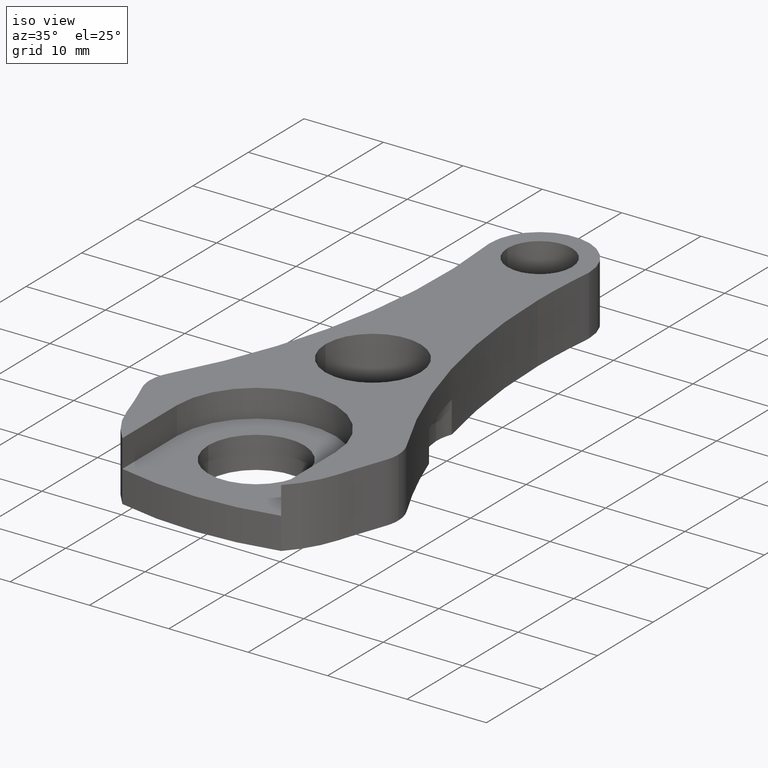
[diagram: clean part render]
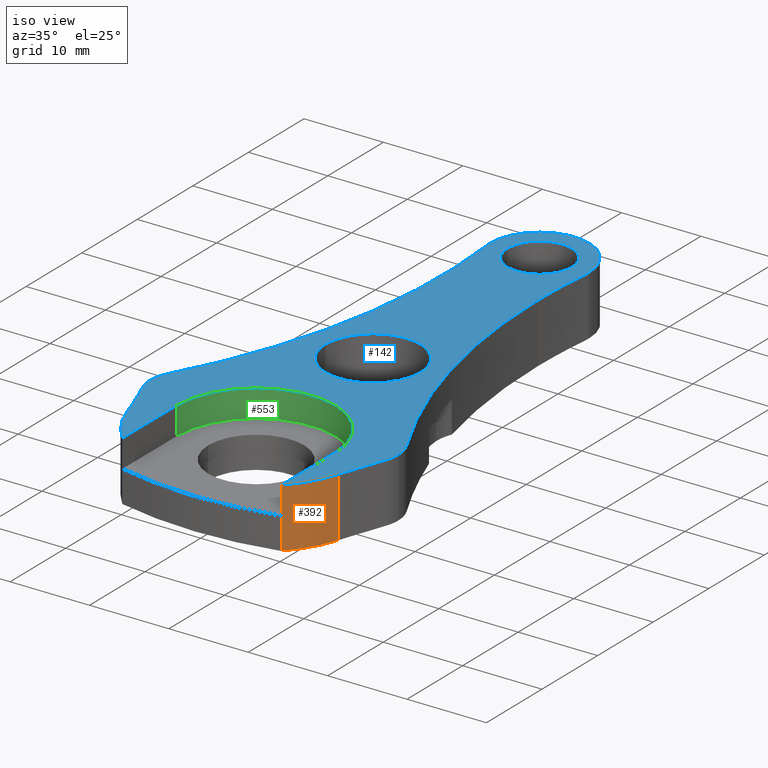
[diagram: same view with three faces highlighted in distinct colors, each labeled with its STEP entity id]
A machine part, iso view with three faces highlighted in distinct colors.
Their STEP definitions:

[orange] entity #392 — the highlighted cylindrical surface (partial cylindrical patch) has radius 14 mm, axis along (-0, 0, -1).
#1 = EDGE_CURVE ( 'NONE', #372, #614, #850, .T. ) ;
#46 = CARTESIAN_POINT ( 'NONE',  ( 0.0000000000000000000, 0.0000000000000000000, 3.500000000000003100 ) ) ;
#51 = VERTEX_POINT ( 'NONE', #244 ) ;
#64 = DIRECTION ( 'NONE',  ( -2.627434620609032000E-046, 1.313717310304516000E-046, -1.000000000000000000 ) ) ;
#77 = LINE ( 'NONE', #116, #304 ) ;
#100 = CARTESIAN_POINT ( 'NONE',  ( 13.34035438566384700, -4.246756982086319400, -4.000000000000003600 ) ) ;
#105 = ORIENTED_EDGE ( 'NONE', *, *, #208, .F. ) ;
#116 = CARTESIAN_POINT ( 'NONE',  ( 9.999999999999968000, -9.797958971132725700, 79.07476084379766200 ) ) ;
#130 = EDGE_CURVE ( 'NONE', #51, #464, #619, .T. ) ;
#145 = CARTESIAN_POINT ( 'NONE',  ( 9.999999999999968000, -9.797958971132725700, 3.500000000000003100 ) ) ;
#208 = EDGE_CURVE ( 'NONE', #352, #464, #618, .T. ) ;
#218 = CARTESIAN_POINT ( 'NONE',  ( 13.34035438566384700, -4.246756982086319400, 3.500000000000003100 ) ) ;
#244 = CARTESIAN_POINT ( 'NONE',  ( 9.999999999999968000, -9.797958971132725700, -4.000000000000003600 ) ) ;
#272 = AXIS2_PLACEMENT_3D ( 'NONE', #870, #951, #388 ) ;
#292 = CIRCLE ( 'NONE', #633, 13.99999999999998800 ) ;
#304 = VECTOR ( 'NONE', #64, 1000.000000000000000 ) ;
#316 = CARTESIAN_POINT ( 'NONE',  ( 13.34035438566384700, -4.246756982086319400, 79.07476084379766200 ) ) ;
#352 = VERTEX_POINT ( 'NONE', #218 ) ;
#355 = ORIENTED_EDGE ( 'NONE', *, *, #130, .T. ) ;
#370 = EDGE_CURVE ( 'NONE', #372, #352, #292, .T. ) ;
#372 = VERTEX_POINT ( 'NONE', #145 ) ;
#388 = DIRECTION ( 'NONE',  ( -1.000000000000000000, 1.885191645205621700E-061, 0.0000000000000000000 ) ) ;
#392 = ADVANCED_FACE ( 'NONE', ( #864 ), #419, .T. ) ;
#395 = CARTESIAN_POINT ( 'NONE',  ( 9.999999999999968000, -9.797958971132725700, 79.07476084379766200 ) ) ;
#419 = CYLINDRICAL_SURFACE ( 'NONE', #272, 13.99999999999998800 ) ;
#437 = ORIENTED_EDGE ( 'NONE', *, *, #370, .F. ) ;
#463 = CARTESIAN_POINT ( 'NONE',  ( 9.999999999999968000, -9.797958971132725700, 0.0000000000000000000 ) ) ;
#464 = VERTEX_POINT ( 'NONE', #100 ) ;
#526 = ORIENTED_EDGE ( 'NONE', *, *, #613, .T. ) ;
#536 = EDGE_LOOP ( 'NONE', ( #437, #668, #526, #355, #105 ) ) ;
#547 = DIRECTION ( 'NONE',  ( 1.000000000000000000, -1.885191645205621700E-061, 0.0000000000000000000 ) ) ;
#603 = DIRECTION ( 'NONE',  ( 1.000000000000000000, -1.885191645205621700E-061, 0.0000000000000000000 ) ) ;
#608 = CARTESIAN_POINT ( 'NONE',  ( 0.0000000000000000000, 0.0000000000000000000, -4.000000000000003600 ) ) ;
#613 = EDGE_CURVE ( 'NONE', #614, #51, #77, .T. ) ;
#614 = VERTEX_POINT ( 'NONE', #463 ) ;
#618 = LINE ( 'NONE', #316, #914 ) ;
#619 = CIRCLE ( 'NONE', #847, 13.99999999999998800 ) ;
#633 = AXIS2_PLACEMENT_3D ( 'NONE', #46, #689, #547 ) ;
#668 = ORIENTED_EDGE ( 'NONE', *, *, #1, .T. ) ;
#689 = DIRECTION ( 'NONE',  ( 2.627434620609032000E-046, -1.313717310304516000E-046, 1.000000000000000000 ) ) ;
#740 = VECTOR ( 'NONE', #958, 1000.000000000000000 ) ;
#747 = DIRECTION ( 'NONE',  ( -2.627434620609032000E-046, 1.313717310304516000E-046, -1.000000000000000000 ) ) ;
#847 = AXIS2_PLACEMENT_3D ( 'NONE', #608, #993, #603 ) ;
#850 = LINE ( 'NONE', #395, #740 ) ;
#864 = FACE_OUTER_BOUND ( 'NONE', #536, .T. ) ;
#870 = CARTESIAN_POINT ( 'NONE',  ( 0.0000000000000000000, 0.0000000000000000000, 79.07476084379766200 ) ) ;
#914 = VECTOR ( 'NONE', #747, 1000.000000000000000 ) ;
#951 = DIRECTION ( 'NONE',  ( -2.627434620609032000E-046, 1.313717310304516000E-046, -1.000000000000000000 ) ) ;
#958 = DIRECTION ( 'NONE',  ( -2.627434620609032000E-046, 1.313717310304516000E-046, -1.000000000000000000 ) ) ;
#993 = DIRECTION ( 'NONE',  ( 2.627434620609032000E-046, -1.313717310304516000E-046, 1.000000000000000000 ) ) ;

[blue] entity #142 — the highlighted planar face has unit normal (-0, -0, 1).
#9 = DIRECTION ( 'NONE',  ( 1.000000000000000000, -1.885191645205621400E-061, 0.0000000000000000000 ) ) ;
#14 = DIRECTION ( 'NONE',  ( -2.627434620609032000E-046, -1.313717310304516000E-046, 1.000000000000000000 ) ) ;
#30 = VERTEX_POINT ( 'NONE', #237 ) ;
#33 = EDGE_CURVE ( 'NONE', #405, #263, #540, .T. ) ;
#40 = DIRECTION ( 'NONE',  ( 1.000000000000000000, 0.0000000000000000000, 0.0000000000000000000 ) ) ;
#42 = AXIS2_PLACEMENT_3D ( 'NONE', #425, #994, #280 ) ;
#46 = CARTESIAN_POINT ( 'NONE',  ( 0.0000000000000000000, 0.0000000000000000000, 3.500000000000003100 ) ) ;
#47 = ORIENTED_EDGE ( 'NONE', *, *, #1050, .F. ) ;
#57 = CARTESIAN_POINT ( 'NONE',  ( -10.79965953901920800, 3.394109441719334300, 3.500000000000003100 ) ) ;
#58 = EDGE_CURVE ( 'NONE', #352, #405, #62, .T. ) ;
#61 = ORIENTED_EDGE ( 'NONE', *, *, #991, .F. ) ;
#62 = CIRCLE ( 'NONE', #234, 76.24851428571427900 ) ;
#65 = ORIENTED_EDGE ( 'NONE', *, *, #644, .T. ) ;
#67 = EDGE_LOOP ( 'NONE', ( #1029, #787, #635, #162, #461, #1071, #88, #189, #890, #952, #375, #65, #835, #336, #992, #309, #508, #570 ) ) ;
#88 = ORIENTED_EDGE ( 'NONE', *, *, #360, .T. ) ;
#90 = EDGE_CURVE ( 'NONE', #470, #256, #873, .T. ) ;
#95 = CARTESIAN_POINT ( 'NONE',  ( 83.78042673124230100, 42.40091762083374500, 3.500000000000003100 ) ) ;
#96 = VERTEX_POINT ( 'NONE', #487 ) ;
#102 = AXIS2_PLACEMENT_3D ( 'NONE', #911, #666, #9 ) ;
#103 = DIRECTION ( 'NONE',  ( 1.000000000000000000, -1.885191645205621400E-061, 2.627434620609032000E-046 ) ) ;
#106 = PLANE ( 'NONE',  #634 ) ;
#115 = CARTESIAN_POINT ( 'NONE',  ( -10.79965953901920800, 3.394109441719334300, 3.500000000000003100 ) ) ;
#117 = AXIS2_PLACEMENT_3D ( 'NONE', #57, #228, #702 ) ;
#131 = CARTESIAN_POINT ( 'NONE',  ( 10.63904025362763600, 3.228825712556809600, 3.500000000000003100 ) ) ;
#137 = VERTEX_POINT ( 'NONE', #816 ) ;
#142 = ADVANCED_FACE ( 'NONE', ( #1064, #695, #972 ), #106, .T. ) ;
#145 = CARTESIAN_POINT ( 'NONE',  ( 9.999999999999968000, -9.797958971132725700, 3.500000000000003100 ) ) ;
#148 = EDGE_CURVE ( 'NONE', #263, #378, #206, .T. ) ;
#154 = CARTESIAN_POINT ( 'NONE',  ( -13.34035438566384700, -4.246756982086305100, 3.500000000000003100 ) ) ;
#162 = ORIENTED_EDGE ( 'NONE', *, *, #523, .T. ) ;
#168 = DIRECTION ( 'NONE',  ( 2.627434620609032000E-046, -1.313717310304516000E-046, 1.000000000000000000 ) ) ;
#184 = DIRECTION ( 'NONE',  ( -2.627434620609032000E-046, 1.313717310304516000E-046, -1.000000000000000000 ) ) ;
#189 = ORIENTED_EDGE ( 'NONE', *, *, #215, .T. ) ;
#190 = DIRECTION ( 'NONE',  ( 1.000000000000000000, 0.0000000000000000000, 0.0000000000000000000 ) ) ;
#194 = CARTESIAN_POINT ( 'NONE',  ( 6.250000000000001800, 50.99999999999997900, 3.500000000000003100 ) ) ;
#206 = CIRCLE ( 'NONE', #678, 5.000000000000000900 ) ;
#210 = CIRCLE ( 'NONE', #42, 4.049999999999998900 ) ;
#215 = EDGE_CURVE ( 'NONE', #1042, #137, #966, .T. ) ;
#218 = CARTESIAN_POINT ( 'NONE',  ( 13.34035438566384700, -4.246756982086319400, 3.500000000000003100 ) ) ;
#228 = DIRECTION ( 'NONE',  ( 2.627434620609032000E-046, -1.313717310304516000E-046, 1.000000000000000000 ) ) ;
#234 = AXIS2_PLACEMENT_3D ( 'NONE', #724, #326, #810 ) ;
#237 = CARTESIAN_POINT ( 'NONE',  ( -9.999999999999994700, 0.0000000000000000000, 3.500000000000003100 ) ) ;
#248 = DIRECTION ( 'NONE',  ( 1.000000000000000000, 4.086064354224496900E-014, 0.0000000000000000000 ) ) ;
#256 = VERTEX_POINT ( 'NONE', #655 ) ;
#257 = DIRECTION ( 'NONE',  ( 2.627434620609032000E-046, -1.313717310304516000E-046, 1.000000000000000000 ) ) ;
#260 = CARTESIAN_POINT ( 'NONE',  ( 9.999999999999968000, -9.797958971132725700, 3.500000000000003100 ) ) ;
#261 = DIRECTION ( 'NONE',  ( 1.000000000000000000, 0.0000000000000000000, 0.0000000000000000000 ) ) ;
#263 = VERTEX_POINT ( 'NONE', #369 ) ;
#280 = DIRECTION ( 'NONE',  ( 1.000000000000000000, 0.0000000000000000000, 0.0000000000000000000 ) ) ;
#292 = CIRCLE ( 'NONE', #633, 13.99999999999998800 ) ;
#297 = CARTESIAN_POINT ( 'NONE',  ( 4.049999999999998900, 50.99999999999997900, 3.500000000000003100 ) ) ;
#300 = DIRECTION ( 'NONE',  ( -2.627434620609032000E-046, 1.313717310304516000E-046, -1.000000000000000000 ) ) ;
#303 = DIRECTION ( 'NONE',  ( -2.627434620609032000E-046, 1.313717310304516000E-046, -1.000000000000000000 ) ) ;
#309 = ORIENTED_EDGE ( 'NONE', *, *, #532, .F. ) ;
#326 = DIRECTION ( 'NONE',  ( -2.627434620609032000E-046, 1.313717310304516000E-046, -1.000000000000000000 ) ) ;
#332 = VERTEX_POINT ( 'NONE', #694 ) ;
#336 = ORIENTED_EDGE ( 'NONE', *, *, #664, .F. ) ;
#345 = CARTESIAN_POINT ( 'NONE',  ( 0.0000000000000000000, 50.99999999999997900, 3.500000000000003100 ) ) ;
#348 = CIRCLE ( 'NONE', #552, 6.000000000000000900 ) ;
#350 = CIRCLE ( 'NONE', #492, 14.00000000000000200 ) ;
#352 = VERTEX_POINT ( 'NONE', #218 ) ;
#354 = CARTESIAN_POINT ( 'NONE',  ( -85.99622595364832000, -27.37596486898382900, 3.500000000000003100 ) ) ;
#360 = EDGE_CURVE ( 'NONE', #669, #1042, #975, .T. ) ;
#369 = CARTESIAN_POINT ( 'NONE',  ( 15.36923433256859400, 1.608559075378921000, 3.500000000000003100 ) ) ;
#370 = EDGE_CURVE ( 'NONE', #372, #352, #292, .T. ) ;
#372 = VERTEX_POINT ( 'NONE', #145 ) ;
#375 = ORIENTED_EDGE ( 'NONE', *, *, #449, .T. ) ;
#378 = VERTEX_POINT ( 'NONE', #852 ) ;
#379 = EDGE_CURVE ( 'NONE', #137, #470, #609, .T. ) ;
#382 = DIRECTION ( 'NONE',  ( 1.000000000000000000, 0.0000000000000000000, 0.0000000000000000000 ) ) ;
#385 = CARTESIAN_POINT ( 'NONE',  ( -9.999999999999994700, 0.0000000000000000000, 3.500000000000003100 ) ) ;
#391 = CIRCLE ( 'NONE', #1056, 77.97056827778322900 ) ;
#402 = DIRECTION ( 'NONE',  ( 2.627434620609032000E-046, -1.313717310304516000E-046, 1.000000000000000000 ) ) ;
#404 = DIRECTION ( 'NONE',  ( 1.000000000000000000, -1.885191645205621700E-061, 0.0000000000000000000 ) ) ;
#405 = VERTEX_POINT ( 'NONE', #550 ) ;
#424 = EDGE_LOOP ( 'NONE', ( #47, #61 ) ) ;
#425 = CARTESIAN_POINT ( 'NONE',  ( 0.0000000000000000000, 50.99999999999997900, 3.500000000000003100 ) ) ;
#428 = CARTESIAN_POINT ( 'NONE',  ( -15.42722516749316100, 1.500531781794455000, 3.500000000000003100 ) ) ;
#431 = AXIS2_PLACEMENT_3D ( 'NONE', #977, #569, #893 ) ;
#439 = DIRECTION ( 'NONE',  ( 1.000000000000000000, 0.0000000000000000000, 0.0000000000000000000 ) ) ;
#445 = VERTEX_POINT ( 'NONE', #672 ) ;
#448 = AXIS2_PLACEMENT_3D ( 'NONE', #642, #168, #626 ) ;
#449 = EDGE_CURVE ( 'NONE', #256, #585, #874, .T. ) ;
#453 = DIRECTION ( 'NONE',  ( 1.000000000000000000, 0.0000000000000000000, 0.0000000000000000000 ) ) ;
#457 = DIRECTION ( 'NONE',  ( 2.627434620609032000E-046, -1.313717310304516000E-046, 1.000000000000000000 ) ) ;
#459 = CIRCLE ( 'NONE', #500, 77.97056827778322900 ) ;
#461 = ORIENTED_EDGE ( 'NONE', *, *, #912, .T. ) ;
#462 = CIRCLE ( 'NONE', #792, 4.049999999999998900 ) ;
#470 = VERTEX_POINT ( 'NONE', #1010 ) ;
#484 = VERTEX_POINT ( 'NONE', #154 ) ;
#487 = CARTESIAN_POINT ( 'NONE',  ( 6.000000000000000900, 20.99999999999997900, 3.500000000000003100 ) ) ;
#488 = CARTESIAN_POINT ( 'NONE',  ( 0.0000000000000000000, 0.0000000000000000000, 3.500000000000003100 ) ) ;
#492 = AXIS2_PLACEMENT_3D ( 'NONE', #488, #1054, #404 ) ;
#500 = AXIS2_PLACEMENT_3D ( 'NONE', #95, #303, #261 ) ;
#506 = VERTEX_POINT ( 'NONE', #858 ) ;
#508 = ORIENTED_EDGE ( 'NONE', *, *, #370, .T. ) ;
#509 = LINE ( 'NONE', #260, #882 ) ;
#523 = EDGE_CURVE ( 'NONE', #941, #589, #391, .T. ) ;
#525 = VERTEX_POINT ( 'NONE', #885 ) ;
#530 = CIRCLE ( 'NONE', #102, 10.00000000000000000 ) ;
#531 = AXIS2_PLACEMENT_3D ( 'NONE', #115, #932, #190 ) ;
#532 = EDGE_CURVE ( 'NONE', #372, #683, #509, .T. ) ;
#540 = CIRCLE ( 'NONE', #577, 179.9999999999999700 ) ;
#547 = DIRECTION ( 'NONE',  ( 1.000000000000000000, -1.885191645205621700E-061, 0.0000000000000000000 ) ) ;
#550 = CARTESIAN_POINT ( 'NONE',  ( 14.31060865489089400, -1.395044883831790600, 3.500000000000003100 ) ) ;
#552 = AXIS2_PLACEMENT_3D ( 'NONE', #891, #1036, #807 ) ;
#558 = EDGE_CURVE ( 'NONE', #800, #506, #210, .T. ) ;
#565 = DIRECTION ( 'NONE',  ( 2.627434620609032000E-046, -1.313717310304516000E-046, 1.000000000000000000 ) ) ;
#566 = CARTESIAN_POINT ( 'NONE',  ( -6.250000000000001800, 50.99999999999997900, 3.500000000000003100 ) ) ;
#569 = DIRECTION ( 'NONE',  ( 2.627434620609032000E-046, -1.313717310304516000E-046, 1.000000000000000000 ) ) ;
#570 = ORIENTED_EDGE ( 'NONE', *, *, #58, .T. ) ;
#577 = AXIS2_PLACEMENT_3D ( 'NONE', #970, #565, #1048 ) ;
#581 = DIRECTION ( 'NONE',  ( 1.000000000000000000, 0.0000000000000000000, 0.0000000000000000000 ) ) ;
#585 = VERTEX_POINT ( 'NONE', #428 ) ;
#589 = VERTEX_POINT ( 'NONE', #857 ) ;
#609 = CIRCLE ( 'NONE', #1062, 74.99999999999998600 ) ;
#612 = CIRCLE ( 'NONE', #859, 6.000000000000000900 ) ;
#626 = DIRECTION ( 'NONE',  ( 1.000000000000000000, 0.0000000000000000000, 0.0000000000000000000 ) ) ;
#633 = AXIS2_PLACEMENT_3D ( 'NONE', #46, #689, #547 ) ;
#634 = AXIS2_PLACEMENT_3D ( 'NONE', #675, #14, #103 ) ;
#635 = ORIENTED_EDGE ( 'NONE', *, *, #763, .T. ) ;
#642 = CARTESIAN_POINT ( 'NONE',  ( 0.0000000000000000000, 50.99999999999997900, 3.500000000000003100 ) ) ;
#644 = EDGE_CURVE ( 'NONE', #585, #484, #773, .T. ) ;
#655 = CARTESIAN_POINT ( 'NONE',  ( -15.79965953901920800, 3.394109441719334300, 3.500000000000003100 ) ) ;
#664 = EDGE_CURVE ( 'NONE', #30, #525, #853, .T. ) ;
#666 = DIRECTION ( 'NONE',  ( 2.627434620609032000E-046, -1.313717310304516000E-046, 1.000000000000000000 ) ) ;
#669 = VERTEX_POINT ( 'NONE', #194 ) ;
#672 = CARTESIAN_POINT ( 'NONE',  ( -6.000000000000000900, 20.99999999999997900, 3.500000000000003100 ) ) ;
#675 = CARTESIAN_POINT ( 'NONE',  ( 0.0000000000000000000, 0.0000000000000000000, 3.500000000000003100 ) ) ;
#677 = AXIS2_PLACEMENT_3D ( 'NONE', #354, #184, #248 ) ;
#678 = AXIS2_PLACEMENT_3D ( 'NONE', #131, #947, #40 ) ;
#683 = VERTEX_POINT ( 'NONE', #1006 ) ;
#689 = DIRECTION ( 'NONE',  ( 2.627434620609032000E-046, -1.313717310304516000E-046, 1.000000000000000000 ) ) ;
#694 = CARTESIAN_POINT ( 'NONE',  ( 6.217337139583195300, 50.36186295142859800, 3.500000000000003100 ) ) ;
#695 = FACE_OUTER_BOUND ( 'NONE', #67, .T. ) ;
#702 = DIRECTION ( 'NONE',  ( 1.000000000000000000, 0.0000000000000000000, 0.0000000000000000000 ) ) ;
#724 = CARTESIAN_POINT ( 'NONE',  ( 85.99622595364830600, -27.37596486898382900, 3.500000000000003100 ) ) ;
#733 = VECTOR ( 'NONE', #871, 1000.000000000000000 ) ;
#743 = CARTESIAN_POINT ( 'NONE',  ( 83.78042673124230100, 42.40091762083374500, 3.500000000000003100 ) ) ;
#763 = EDGE_CURVE ( 'NONE', #378, #941, #926, .T. ) ;
#773 = CIRCLE ( 'NONE', #677, 76.24851428571430700 ) ;
#785 = CARTESIAN_POINT ( 'NONE',  ( -80.76965408793313400, 42.17812499999996600, 3.500000000000003100 ) ) ;
#787 = ORIENTED_EDGE ( 'NONE', *, *, #148, .T. ) ;
#792 = AXIS2_PLACEMENT_3D ( 'NONE', #968, #402, #581 ) ;
#800 = VERTEX_POINT ( 'NONE', #297 ) ;
#806 = EDGE_CURVE ( 'NONE', #506, #800, #462, .T. ) ;
#807 = DIRECTION ( 'NONE',  ( 1.000000000000000000, 0.0000000000000000000, 0.0000000000000000000 ) ) ;
#810 = DIRECTION ( 'NONE',  ( 1.000000000000000000, 0.0000000000000000000, 0.0000000000000000000 ) ) ;
#812 = AXIS2_PLACEMENT_3D ( 'NONE', #345, #920, #439 ) ;
#816 = CARTESIAN_POINT ( 'NONE',  ( -6.213050314456403100, 50.32139423076921500, 3.500000000000003100 ) ) ;
#822 = DIRECTION ( 'NONE',  ( 1.000000000000000000, 0.0000000000000000000, 0.0000000000000000000 ) ) ;
#826 = EDGE_LOOP ( 'NONE', ( #985, #1055 ) ) ;
#830 = DIRECTION ( 'NONE',  ( 3.363939994101538300E-015, 1.000000000000000000, -1.313717310304516000E-046 ) ) ;
#835 = ORIENTED_EDGE ( 'NONE', *, *, #1020, .T. ) ;
#852 = CARTESIAN_POINT ( 'NONE',  ( 15.63904025362763600, 3.228825712556809600, 3.500000000000003100 ) ) ;
#853 = LINE ( 'NONE', #385, #733 ) ;
#856 = DIRECTION ( 'NONE',  ( -2.627434620609032000E-046, 1.313717310304516000E-046, -1.000000000000000000 ) ) ;
#857 = CARTESIAN_POINT ( 'NONE',  ( 5.809858453459076700, 42.40091762083374500, 3.500000000000003100 ) ) ;
#858 = CARTESIAN_POINT ( 'NONE',  ( -4.049999999999998900, 50.99999999999997900, 3.500000000000003100 ) ) ;
#859 = AXIS2_PLACEMENT_3D ( 'NONE', #986, #257, #822 ) ;
#871 = DIRECTION ( 'NONE',  ( -1.770494733737654000E-015, -1.000000000000000000, 1.313717310304516000E-046 ) ) ;
#873 = CIRCLE ( 'NONE', #117, 5.000000000000000000 ) ;
#874 = CIRCLE ( 'NONE', #531, 5.000000000000000000 ) ;
#882 = VECTOR ( 'NONE', #830, 1000.000000000000000 ) ;
#885 = CARTESIAN_POINT ( 'NONE',  ( -10.00000000000002300, -9.797958971132711500, 3.500000000000003100 ) ) ;
#890 = ORIENTED_EDGE ( 'NONE', *, *, #379, .T. ) ;
#891 = CARTESIAN_POINT ( 'NONE',  ( 0.0000000000000000000, 20.99999999999997900, 3.500000000000003100 ) ) ;
#893 = DIRECTION ( 'NONE',  ( 1.000000000000000000, 0.0000000000000000000, 0.0000000000000000000 ) ) ;
#896 = CIRCLE ( 'NONE', #448, 6.250000000000001800 ) ;
#906 = CARTESIAN_POINT ( 'NONE',  ( 15.04671082861630500, 5.589427352473864000, 3.500000000000003100 ) ) ;
#911 = CARTESIAN_POINT ( 'NONE',  ( 0.0000000000000000000, 0.0000000000000000000, 3.500000000000003100 ) ) ;
#912 = EDGE_CURVE ( 'NONE', #589, #332, #459, .T. ) ;
#920 = DIRECTION ( 'NONE',  ( 2.627434620609032000E-046, -1.313717310304516000E-046, 1.000000000000000000 ) ) ;
#926 = CIRCLE ( 'NONE', #944, 5.000000000000000900 ) ;
#932 = DIRECTION ( 'NONE',  ( 2.627434620609032000E-046, -1.313717310304516000E-046, 1.000000000000000000 ) ) ;
#938 = EDGE_CURVE ( 'NONE', #683, #30, #530, .T. ) ;
#941 = VERTEX_POINT ( 'NONE', #906 ) ;
#944 = AXIS2_PLACEMENT_3D ( 'NONE', #1019, #457, #945 ) ;
#945 = DIRECTION ( 'NONE',  ( 1.000000000000000000, 0.0000000000000000000, 0.0000000000000000000 ) ) ;
#947 = DIRECTION ( 'NONE',  ( 2.627434620609032000E-046, -1.313717310304516000E-046, 1.000000000000000000 ) ) ;
#952 = ORIENTED_EDGE ( 'NONE', *, *, #90, .T. ) ;
#963 = EDGE_CURVE ( 'NONE', #332, #669, #896, .T. ) ;
#966 = CIRCLE ( 'NONE', #431, 6.250000000000001800 ) ;
#968 = CARTESIAN_POINT ( 'NONE',  ( 0.0000000000000000000, 50.99999999999997900, 3.500000000000003100 ) ) ;
#970 = CARTESIAN_POINT ( 'NONE',  ( -154.9177525093064400, 59.93815801378288200, 3.500000000000003100 ) ) ;
#972 = FACE_BOUND ( 'NONE', #826, .T. ) ;
#975 = CIRCLE ( 'NONE', #812, 6.250000000000001800 ) ;
#977 = CARTESIAN_POINT ( 'NONE',  ( 0.0000000000000000000, 50.99999999999997900, 3.500000000000003100 ) ) ;
#985 = ORIENTED_EDGE ( 'NONE', *, *, #806, .F. ) ;
#986 = CARTESIAN_POINT ( 'NONE',  ( 0.0000000000000000000, 20.99999999999997900, 3.500000000000003100 ) ) ;
#991 = EDGE_CURVE ( 'NONE', #445, #96, #348, .T. ) ;
#992 = ORIENTED_EDGE ( 'NONE', *, *, #938, .F. ) ;
#994 = DIRECTION ( 'NONE',  ( 2.627434620609032000E-046, -1.313717310304516000E-046, 1.000000000000000000 ) ) ;
#1006 = CARTESIAN_POINT ( 'NONE',  ( 9.999999999999994700, 0.0000000000000000000, 3.500000000000003100 ) ) ;
#1010 = CARTESIAN_POINT ( 'NONE',  ( -15.17278419832633700, 5.818110414111885100, 3.500000000000003100 ) ) ;
#1019 = CARTESIAN_POINT ( 'NONE',  ( 10.63904025362763600, 3.228825712556809600, 3.500000000000003100 ) ) ;
#1020 = EDGE_CURVE ( 'NONE', #484, #525, #350, .T. ) ;
#1029 = ORIENTED_EDGE ( 'NONE', *, *, #33, .T. ) ;
#1036 = DIRECTION ( 'NONE',  ( 2.627434620609032000E-046, -1.313717310304516000E-046, 1.000000000000000000 ) ) ;
#1042 = VERTEX_POINT ( 'NONE', #566 ) ;
#1048 = DIRECTION ( 'NONE',  ( 1.000000000000000000, 0.0000000000000000000, 0.0000000000000000000 ) ) ;
#1050 = EDGE_CURVE ( 'NONE', #96, #445, #612, .T. ) ;
#1054 = DIRECTION ( 'NONE',  ( 2.627434620609032000E-046, -1.313717310304516000E-046, 1.000000000000000000 ) ) ;
#1055 = ORIENTED_EDGE ( 'NONE', *, *, #558, .F. ) ;
#1056 = AXIS2_PLACEMENT_3D ( 'NONE', #743, #856, #453 ) ;
#1062 = AXIS2_PLACEMENT_3D ( 'NONE', #785, #300, #382 ) ;
#1064 = FACE_BOUND ( 'NONE', #424, .T. ) ;
#1071 = ORIENTED_EDGE ( 'NONE', *, *, #963, .T. ) ;

[green] entity #553 — the highlighted cylindrical surface (partial cylindrical patch) has radius 10 mm, axis along (0, -0, 1).
#9 = DIRECTION ( 'NONE',  ( 1.000000000000000000, -1.885191645205621400E-061, 0.0000000000000000000 ) ) ;
#16 = CARTESIAN_POINT ( 'NONE',  ( 9.999999999999994700, 0.0000000000000000000, 0.0000000000000000000 ) ) ;
#21 = DIRECTION ( 'NONE',  ( 1.000000000000000000, -1.885191645205621400E-061, 2.627434620609032000E-046 ) ) ;
#23 = VECTOR ( 'NONE', #59, 1000.000000000000000 ) ;
#30 = VERTEX_POINT ( 'NONE', #237 ) ;
#32 = DIRECTION ( 'NONE',  ( 2.627434620609032000E-046, -1.313717310304516000E-046, 1.000000000000000000 ) ) ;
#59 = DIRECTION ( 'NONE',  ( 2.627434620609032000E-046, -1.313717310304516000E-046, 1.000000000000000000 ) ) ;
#102 = AXIS2_PLACEMENT_3D ( 'NONE', #911, #666, #9 ) ;
#169 = CARTESIAN_POINT ( 'NONE',  ( 0.0000000000000000000, 0.0000000000000000000, -29.00000000000002500 ) ) ;
#174 = FACE_OUTER_BOUND ( 'NONE', #177, .T. ) ;
#177 = EDGE_LOOP ( 'NONE', ( #909, #235, #696, #373 ) ) ;
#235 = ORIENTED_EDGE ( 'NONE', *, *, #829, .T. ) ;
#237 = CARTESIAN_POINT ( 'NONE',  ( -9.999999999999994700, 0.0000000000000000000, 3.500000000000003100 ) ) ;
#240 = CIRCLE ( 'NONE', #330, 10.00000000000000000 ) ;
#253 = AXIS2_PLACEMENT_3D ( 'NONE', #169, #562, #717 ) ;
#330 = AXIS2_PLACEMENT_3D ( 'NONE', #579, #544, #21 ) ;
#373 = ORIENTED_EDGE ( 'NONE', *, *, #713, .F. ) ;
#530 = CIRCLE ( 'NONE', #102, 10.00000000000000000 ) ;
#534 = EDGE_CURVE ( 'NONE', #671, #627, #240, .T. ) ;
#544 = DIRECTION ( 'NONE',  ( -2.627434620609032000E-046, 1.313717310304516000E-046, -1.000000000000000000 ) ) ;
#553 = ADVANCED_FACE ( 'NONE', ( #174 ), #1043, .F. ) ;
#554 = LINE ( 'NONE', #617, #969 ) ;
#562 = DIRECTION ( 'NONE',  ( 2.627434620609032000E-046, -1.313717310304516000E-046, 1.000000000000000000 ) ) ;
#579 = CARTESIAN_POINT ( 'NONE',  ( 0.0000000000000000000, 0.0000000000000000000, 0.0000000000000000000 ) ) ;
#617 = CARTESIAN_POINT ( 'NONE',  ( -9.999999999999994700, 0.0000000000000000000, -29.00000000000002500 ) ) ;
#627 = VERTEX_POINT ( 'NONE', #16 ) ;
#666 = DIRECTION ( 'NONE',  ( 2.627434620609032000E-046, -1.313717310304516000E-046, 1.000000000000000000 ) ) ;
#671 = VERTEX_POINT ( 'NONE', #921 ) ;
#683 = VERTEX_POINT ( 'NONE', #1006 ) ;
#696 = ORIENTED_EDGE ( 'NONE', *, *, #938, .T. ) ;
#713 = EDGE_CURVE ( 'NONE', #671, #30, #554, .T. ) ;
#717 = DIRECTION ( 'NONE',  ( 1.000000000000000000, -1.885191645205621400E-061, 0.0000000000000000000 ) ) ;
#804 = CARTESIAN_POINT ( 'NONE',  ( 9.999999999999994700, 0.0000000000000000000, -29.00000000000002500 ) ) ;
#829 = EDGE_CURVE ( 'NONE', #627, #683, #1067, .T. ) ;
#909 = ORIENTED_EDGE ( 'NONE', *, *, #534, .T. ) ;
#911 = CARTESIAN_POINT ( 'NONE',  ( 0.0000000000000000000, 0.0000000000000000000, 3.500000000000003100 ) ) ;
#921 = CARTESIAN_POINT ( 'NONE',  ( -9.999999999999994700, 0.0000000000000000000, 0.0000000000000000000 ) ) ;
#938 = EDGE_CURVE ( 'NONE', #683, #30, #530, .T. ) ;
#969 = VECTOR ( 'NONE', #32, 1000.000000000000000 ) ;
#1006 = CARTESIAN_POINT ( 'NONE',  ( 9.999999999999994700, 0.0000000000000000000, 3.500000000000003100 ) ) ;
#1043 = CYLINDRICAL_SURFACE ( 'NONE', #253, 10.00000000000000000 ) ;
#1067 = LINE ( 'NONE', #804, #23 ) ;